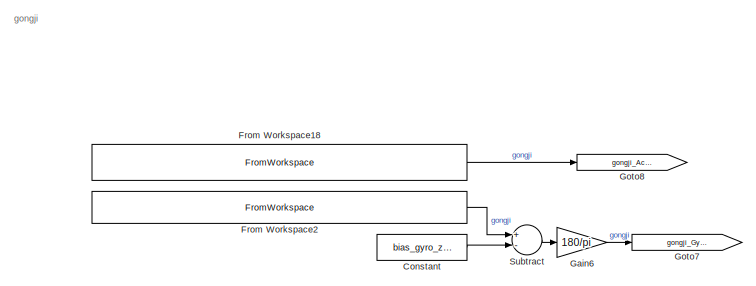
[diagram: root canvas - part 1/8, top left region]
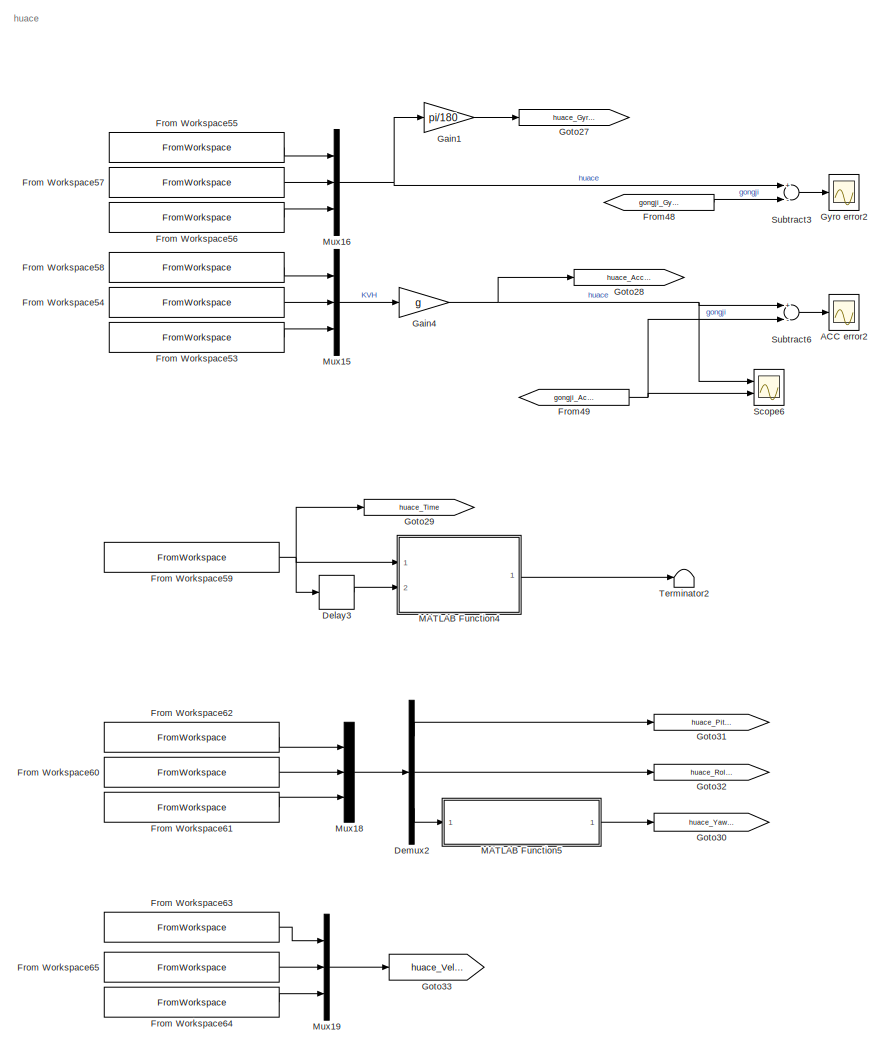
[diagram: root canvas - part 2/8, middle right region]
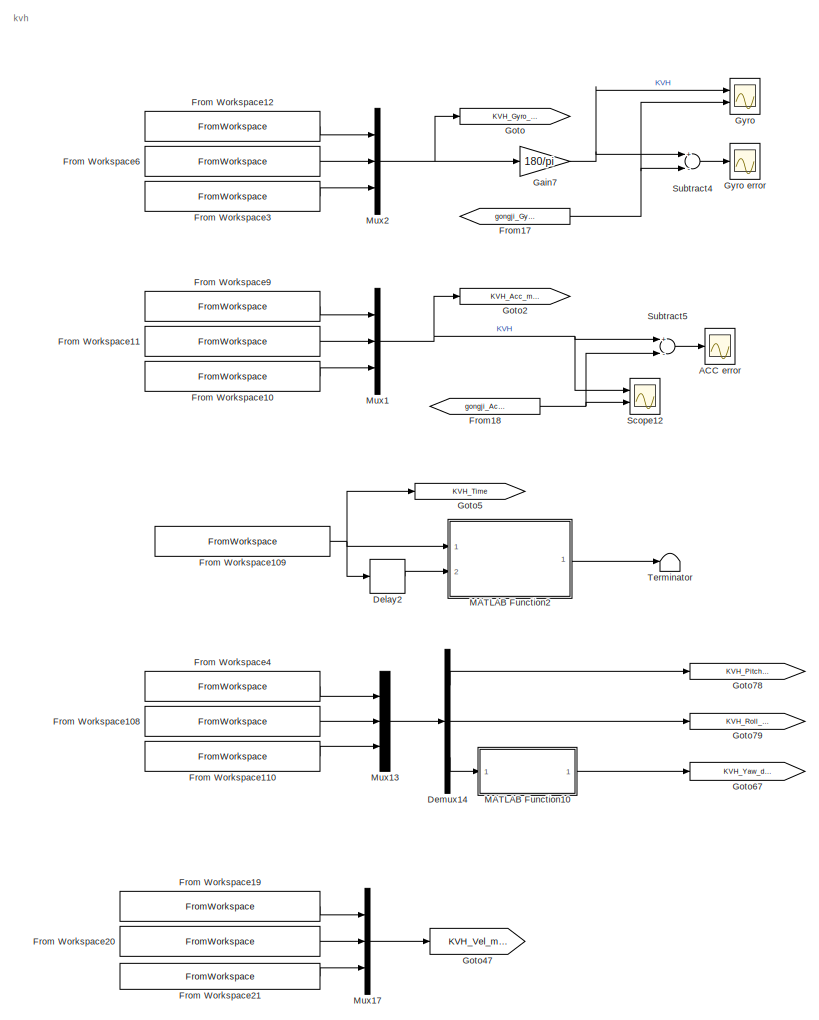
[diagram: root canvas - part 3/8, middle left region]
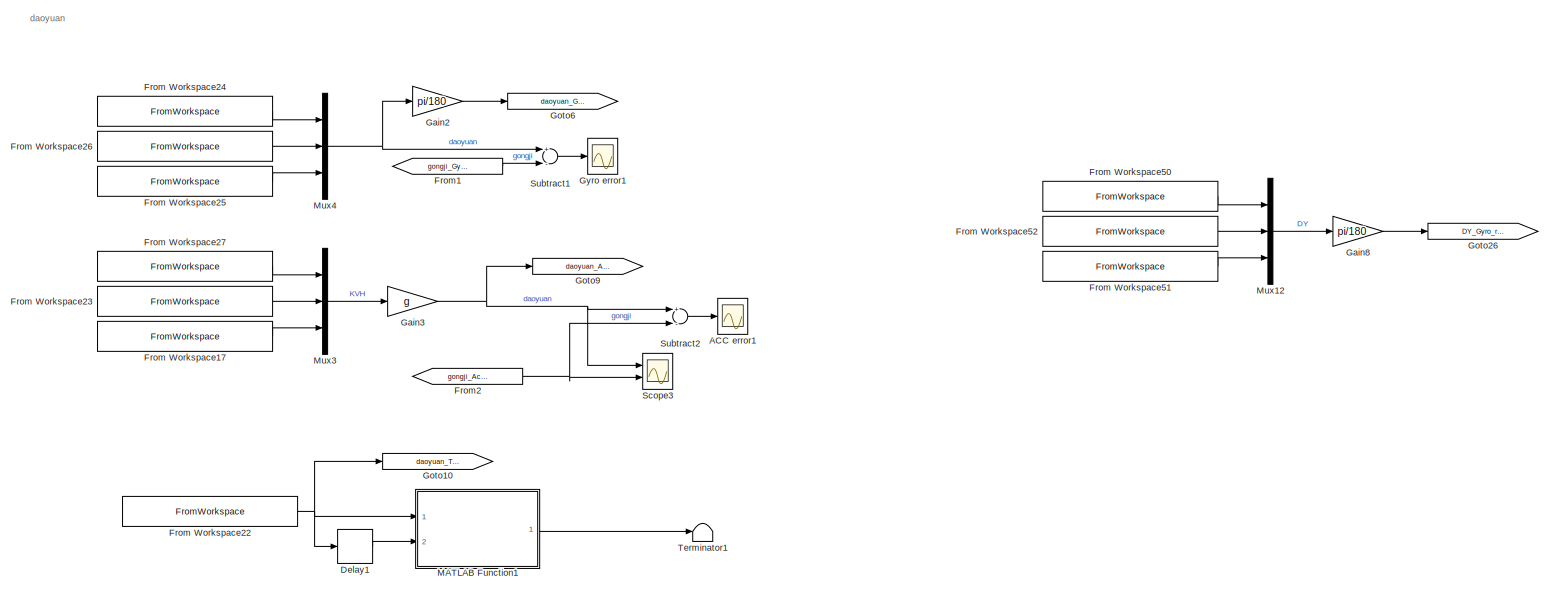
[diagram: root canvas - part 4/8, top center region]
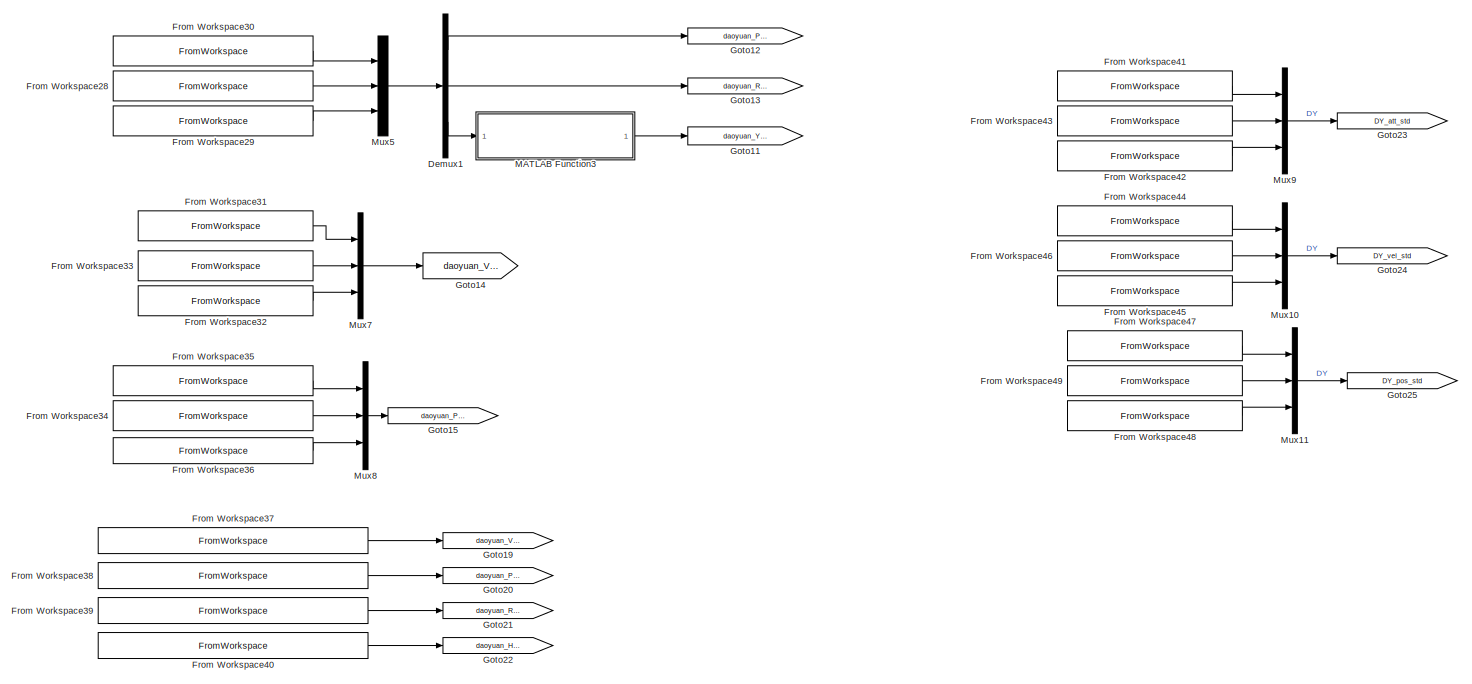
[diagram: root canvas - part 5/8, central region]
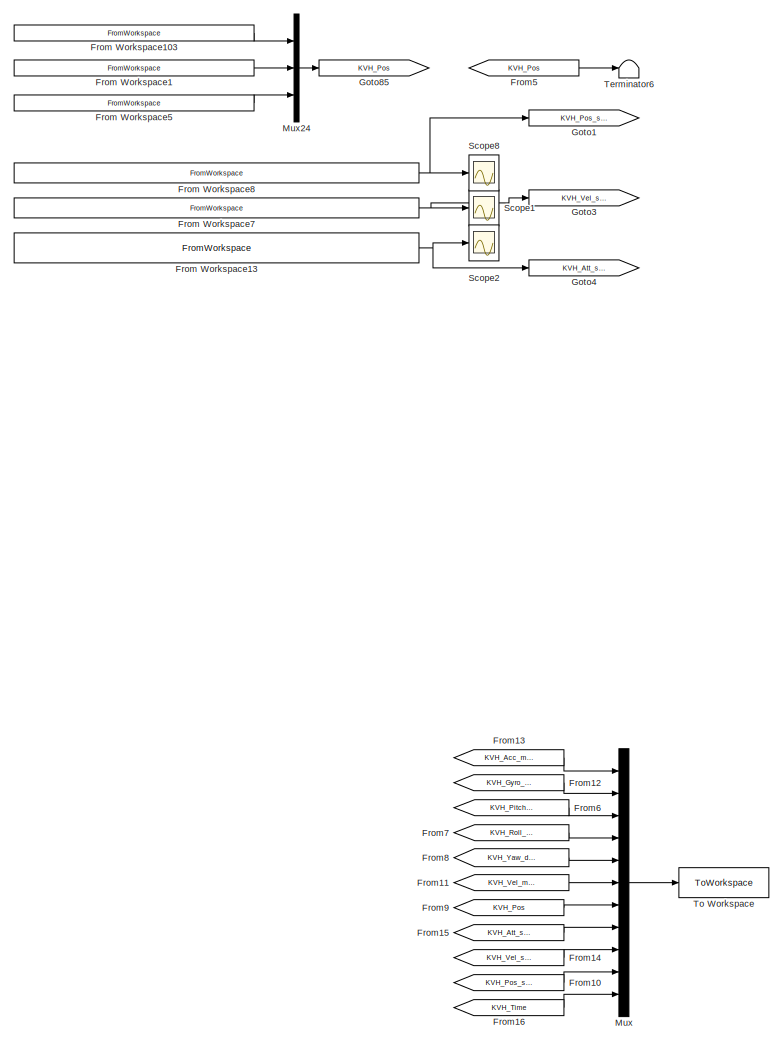
[diagram: root canvas - part 6/8, bottom left region]
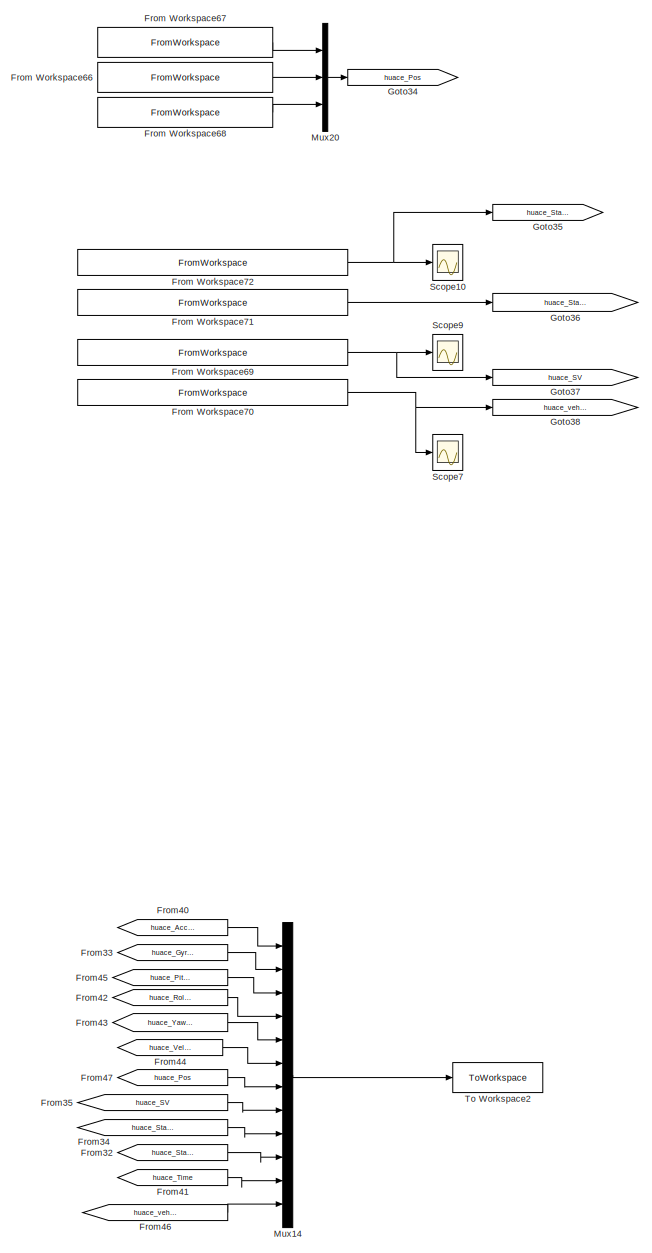
[diagram: root canvas - part 7/8, bottom right region]
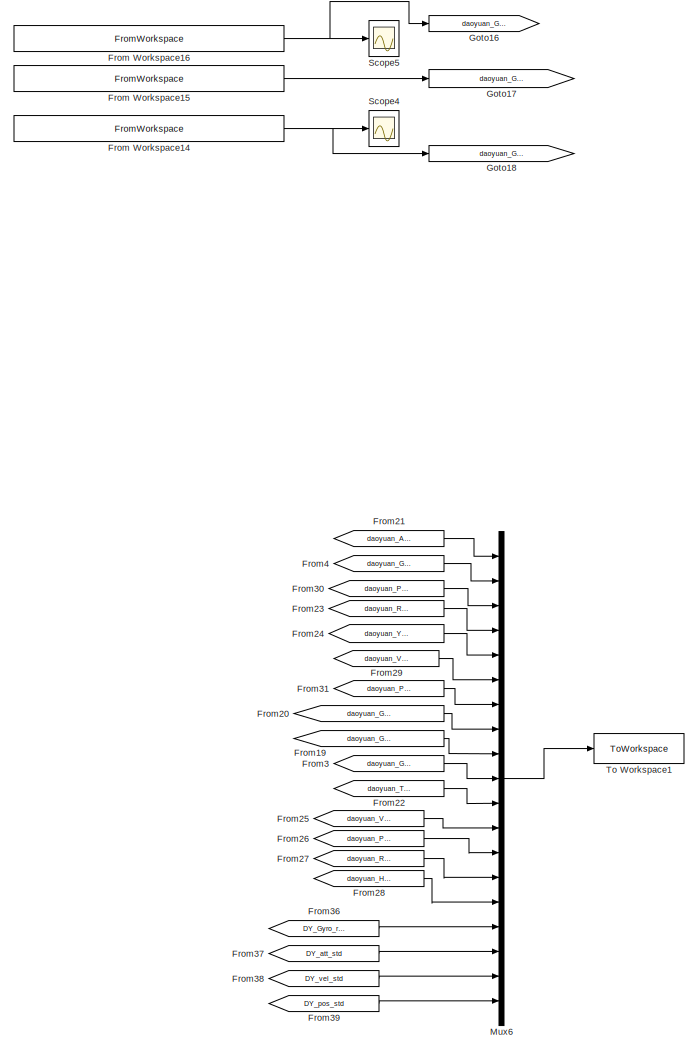
[diagram: root canvas - part 8/8, bottom center region]
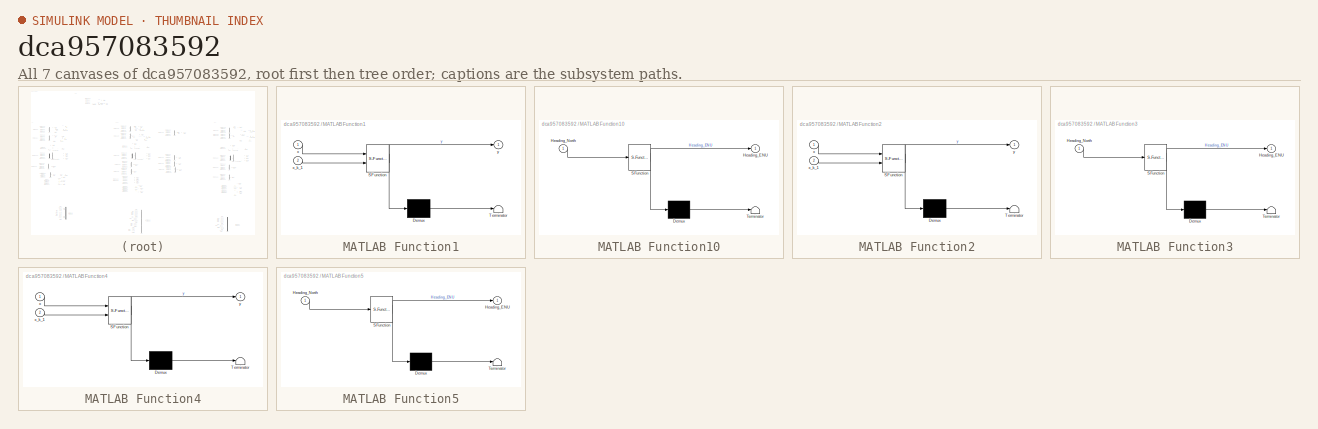
[diagram: thumbnail index - all 7 canvases of the model, root first then tree order]
MODEL slx_dca957083592
KIND model
CONFIG AbsTol = auto
CONFIG EnableMultiTasking = off
CONFIG FixedStep = 0.01
CONFIG MaxStep = 0.01
CONFIG MinStep = auto
CONFIG RelTol = 1e-3
CONFIG SampleTimeConstraint = Unconstrained
CONFIG Solver = ode3
CONFIG SolverName = ode3
CONFIG StartTime = 0.0
CONFIG StopTime = 6000
BLOCK [Scope] ACC error
  Floating = off
  NumInputPorts = 1
  Ports = [1]
  ScopeSpecificationString = Simulink.scopes.TimeScopeBlockCfg('CurrentConfiguration', extmgr.ConfigurationSet(extmgr.Configuration('Core','General UI',true),extmgr.Configuration('Core','Source UI',true),extmgr.Configuration('Sources','WiredSimulink',true,'DataLoggingVariableName','ScopeData2','DataLoggingSaveFormat','StructureWithTime','DataLoggingDecimation','1','DataLoggingDecimateData',true),extmgr.Configuration('Visuals'...<+1628ch>
BLOCK [Scope] ACC error1
  Floating = off
  NumInputPorts = 1
  Ports = [1]
  ScopeSpecificationString = Simulink.scopes.TimeScopeBlockCfg('CurrentConfiguration', extmgr.ConfigurationSet(extmgr.Configuration('Core','General UI',true),extmgr.Configuration('Core','Source UI',true),extmgr.Configuration('Sources','WiredSimulink',true,'DataLoggingVariableName','ScopeData1','DataLoggingSaveFormat','StructureWithTime','DataLoggingDecimation','1','DataLoggingDecimateData',true),extmgr.Configuration('Visuals'...<+1606ch>
BLOCK [Scope] ACC error2
  Floating = off
  NumInputPorts = 1
  Ports = [1]
  ScopeSpecificationString = Simulink.scopes.TimeScopeBlockCfg('CurrentConfiguration', extmgr.ConfigurationSet(extmgr.Configuration('Core','General UI',true),extmgr.Configuration('Core','Source UI',true),extmgr.Configuration('Sources','WiredSimulink',true,'DataLoggingVariableName','ScopeData6','DataLoggingSaveFormat','StructureWithTime','DataLoggingDecimation','1','DataLoggingDecimateData',true),extmgr.Configuration('Visuals'...<+1621ch>
BLOCK [Constant] Constant
  Value = bias_gyro_z_gongji
BLOCK [Delay] Delay1
  DelayLength = 1
  InitialCondition = 0
  InputPortMap = u0
  Ports = [1, 1]
BLOCK [Delay] Delay2
  DelayLength = 1
  InitialCondition = 0
  InputPortMap = u0
  Ports = [1, 1]
BLOCK [Delay] Delay3
  DelayLength = 1
  InitialCondition = 0
  InputPortMap = u0
  Ports = [1, 1]
BLOCK [Demux] Demux1
  DisplayOption = bar
  Outputs = 3
  Ports = [1, 3]
BLOCK [Demux] Demux14
  DisplayOption = bar
  Outputs = 3
  Ports = [1, 3]
BLOCK [Demux] Demux2
  DisplayOption = bar
  Outputs = 3
  Ports = [1, 3]
BLOCK [FromWorkspace] From Workspace1
  OutputAfterFinalValue = Holding final value
  VariableName = [T_post,KVH_Post.Longitude*deg2rad(1)]
  ZeroCross = on
BLOCK [FromWorkspace] From Workspace10
  Interpolate = off
  OutputAfterFinalValue = Holding final value
  VariableName = [T_RAWIMU,KVH1750.RAWIMU.Z_Acc]
  ZeroCross = on
BLOCK [FromWorkspace] From Workspace103
  OutputAfterFinalValue = Holding final value
  VariableName = [T_post,KVH_Post.Latitude*deg2rad(1)]
  ZeroCross = on
BLOCK [FromWorkspace] From Workspace108
  Interpolate = off
  OutputAfterFinalValue = Holding final value
  VariableName = [T_post,KVH_Post.Roll]
  ZeroCross = on
BLOCK [FromWorkspace] From Workspace109
  Interpolate = off
  OutputAfterFinalValue = Holding final value
  VariableName = [T_post,T_post]
  ZeroCross = on
BLOCK [FromWorkspace] From Workspace11
  Interpolate = off
  OutputAfterFinalValue = Holding final value
  VariableName = [T_RAWIMU,KVH1750.RAWIMU.Y_Acc]
  ZeroCross = on
BLOCK [FromWorkspace] From Workspace110
  Interpolate = off
  OutputAfterFinalValue = Holding final value
  VariableName = [T_post,KVH_Post.Heading]
  ZeroCross = on
BLOCK [FromWorkspace] From Workspace12
  Interpolate = off
  OutputAfterFinalValue = Holding final value
  VariableName = [T_RAWIMU,KVH1750.RAWIMU.X_Gyro]
  ZeroCross = on
BLOCK [FromWorkspace] From Workspace13
  Interpolate = off
  OutputAfterFinalValue = Holding final value
  VariableName = [T_post,KVH_Post.PitchSD,KVH_Post.RollSD,KVH_Post.HdngSD]
  ZeroCross = on
BLOCK [FromWorkspace] From Workspace14
  Interpolate = off
  OutputAfterFinalValue = Holding final value
  VariableName = [T_GNSS_daoyuan,data_daoyuan.GPSData.NumSV]
  ZeroCross = on
BLOCK [FromWorkspace] From Workspace15
  Interpolate = off
  OutputAfterFinalValue = Holding final value
  VariableName = [T_GNSS_daoyuan,data_daoyuan.GPSData.heading]
  ZeroCross = on
BLOCK [FromWorkspace] From Workspace16
  Interpolate = off
  OutputAfterFinalValue = Holding final value
  VariableName = [T_GNSS_daoyuan,data_daoyuan.GPSData.Lat]
  ZeroCross = on
BLOCK [FromWorkspace] From Workspace17
  Interpolate = off
  OutputAfterFinalValue = Holding final value
  VariableName = [T_INS_daoyuan,-data_daoyuan.INSData.a(:,3)]
  ZeroCross = on
BLOCK [FromWorkspace] From Workspace18
  Interpolate = off
  OutputAfterFinalValue = Holding final value
  VariableName = [Time,RawData_table.IMU_ACC_x,RawData_table.IMU_ACC_y,RawData_table.IMU_ACC_z]
  ZeroCross = on
BLOCK [FromWorkspace] From Workspace19
  Interpolate = off
  OutputAfterFinalValue = Holding final value
  VariableName = [T_post,KVH_Post.VEast]
  ZeroCross = on
BLOCK [FromWorkspace] From Workspace2
  Interpolate = off
  OutputAfterFinalValue = Holding final value
  VariableName = [Time,RawData_table.IMU_Gyro_x,RawData_table.IMU_Gyro_y,RawData_table.IMU_Gyro_z]
  ZeroCross = on
BLOCK [FromWorkspace] From Workspace20
  Interpolate = off
  OutputAfterFinalValue = Holding final value
  VariableName = [T_post,KVH_Post.VNorth]
  ZeroCross = on
BLOCK [FromWorkspace] From Workspace21
  Interpolate = off
  OutputAfterFinalValue = Holding final value
  VariableName = [T_post,KVH_Post.VUp]
  ZeroCross = on
BLOCK [FromWorkspace] From Workspace22
  Interpolate = off
  OutputAfterFinalValue = Holding final value
  VariableName = [T_INS_daoyuan,T_INS_daoyuan]
  ZeroCross = on
BLOCK [FromWorkspace] From Workspace23
  Interpolate = off
  OutputAfterFinalValue = Holding final value
  VariableName = [T_INS_daoyuan,data_daoyuan.INSData.a(:,1)]
  ZeroCross = on
BLOCK [FromWorkspace] From Workspace24
  Interpolate = off
  OutputAfterFinalValue = Holding final value
  VariableName = [T_INS_daoyuan,data_daoyuan.INSData.g(:,2)]
  ZeroCross = on
BLOCK [FromWorkspace] From Workspace25
  Interpolate = off
  OutputAfterFinalValue = Holding final value
  VariableName = [T_INS_daoyuan,-data_daoyuan.INSData.g(:,3)]
  ZeroCross = on
BLOCK [FromWorkspace] From Workspace26
  Interpolate = off
  OutputAfterFinalValue = Holding final value
  VariableName = [T_INS_daoyuan,data_daoyuan.INSData.g(:,1)]
  ZeroCross = on
BLOCK [FromWorkspace] From Workspace27
  Interpolate = off
  OutputAfterFinalValue = Holding final value
  VariableName = [T_INS_daoyuan,data_daoyuan.INSData.a(:,2)]
  ZeroCross = on
BLOCK [FromWorkspace] From Workspace28
  Interpolate = off
  OutputAfterFinalValue = Holding final value
  VariableName = [T_INS_daoyuan,data_daoyuan.INSData.angle(:,1)]
  ZeroCross = on
BLOCK [FromWorkspace] From Workspace29
  Interpolate = off
  OutputAfterFinalValue = Holding final value
  VariableName = [T_INS_daoyuan,data_daoyuan.INSData.angle(:,3)]
  ZeroCross = on
BLOCK [FromWorkspace] From Workspace3
  Interpolate = off
  OutputAfterFinalValue = Holding final value
  VariableName = [T_RAWIMU,KVH1750.RAWIMU.Z_Gyro]
  ZeroCross = on
BLOCK [FromWorkspace] From Workspace30
  Interpolate = off
  OutputAfterFinalValue = Holding final value
  VariableName = [T_INS_daoyuan,data_daoyuan.INSData.angle(:,2)]
  ZeroCross = on
BLOCK [FromWorkspace] From Workspace31
  Interpolate = off
  OutputAfterFinalValue = Holding final value
  VariableName = [T_INS_daoyuan,data_daoyuan.INSData.v(:,2)]
  ZeroCross = on
BLOCK [FromWorkspace] From Workspace32
  Interpolate = off
  OutputAfterFinalValue = Holding final value
  VariableName = [T_INS_daoyuan,-data_daoyuan.INSData.v(:,3)]
  ZeroCross = on
BLOCK [FromWorkspace] From Workspace33
  Interpolate = off
  OutputAfterFinalValue = Holding final value
  VariableName = [T_INS_daoyuan,data_daoyuan.INSData.v(:,1)]
  ZeroCross = on
BLOCK [FromWorkspace] From Workspace34
  Interpolate = off
  OutputAfterFinalValue = Holding final value
  VariableName = [T_INS_daoyuan,data_daoyuan.INSData.pos(:,2)]
  ZeroCross = on
BLOCK [FromWorkspace] From Workspace35
  Interpolate = off
  OutputAfterFinalValue = Holding final value
  VariableName = [T_INS_daoyuan,data_daoyuan.INSData.pos(:,1)]
  ZeroCross = on
BLOCK [FromWorkspace] From Workspace36
  Interpolate = off
  OutputAfterFinalValue = Holding final value
  VariableName = [T_INS_daoyuan,data_daoyuan.INSData.pos(:,3)]
  ZeroCross = on
BLOCK [FromWorkspace] From Workspace37
  Interpolate = off
  OutputAfterFinalValue = Holding final value
  VariableName = [T_INS_daoyuan,data_daoyuan.SelfDefine.V_R]
  ZeroCross = on
BLOCK [FromWorkspace] From Workspace38
  Interpolate = off
  OutputAfterFinalValue = Holding final value
  VariableName = [T_INS_daoyuan,data_daoyuan.SelfDefine.P_R]
  ZeroCross = on
BLOCK [FromWorkspace] From Workspace39
  Interpolate = off
  OutputAfterFinalValue = Holding final value
  VariableName = [T_INS_daoyuan,data_daoyuan.SelfDefine.R2_R]
  ZeroCross = on
BLOCK [FromWorkspace] From Workspace4
  Interpolate = off
  OutputAfterFinalValue = Holding final value
  VariableName = [T_post,KVH_Post.Pitch]
  ZeroCross = on
BLOCK [FromWorkspace] From Workspace40
  Interpolate = off
  OutputAfterFinalValue = Holding final value
  VariableName = [T_INS_daoyuan,data_daoyuan.SelfDefine.H2_R]
  ZeroCross = on
BLOCK [FromWorkspace] From Workspace41
  Interpolate = off
  OutputAfterFinalValue = Holding final value
  VariableName = [T_INS_DY,RawData_table_DY.pitch_std]
  ZeroCross = on
BLOCK [FromWorkspace] From Workspace42
  Interpolate = off
  OutputAfterFinalValue = Holding final value
  VariableName = [T_INS_DY,RawData_table_DY.yaw_std]
  ZeroCross = on
BLOCK [FromWorkspace] From Workspace43
  Interpolate = off
  OutputAfterFinalValue = Holding final value
  VariableName = [T_INS_DY,RawData_table_DY.roll_std]
  ZeroCross = on
BLOCK [FromWorkspace] From Workspace44
  Interpolate = off
  OutputAfterFinalValue = Holding final value
  VariableName = [T_INS_DY,RawData_table_DY.ve_std]
  ZeroCross = on
BLOCK [FromWorkspace] From Workspace45
  Interpolate = off
  OutputAfterFinalValue = Holding final value
  VariableName = [T_INS_DY,RawData_table_DY.vd_std]
  ZeroCross = on
BLOCK [FromWorkspace] From Workspace46
  Interpolate = off
  OutputAfterFinalValue = Holding final value
  VariableName = [T_INS_DY,RawData_table_DY.vn_std]
  ZeroCross = on
BLOCK [FromWorkspace] From Workspace47
  Interpolate = off
  OutputAfterFinalValue = Holding final value
  VariableName = [T_INS_DY,RawData_table_DY.lat_std]
  ZeroCross = on
BLOCK [FromWorkspace] From Workspace48
  Interpolate = off
  OutputAfterFinalValue = Holding final value
  VariableName = [T_INS_DY,RawData_table_DY.h_std]
  ZeroCross = on
BLOCK [FromWorkspace] From Workspace49
  Interpolate = off
  OutputAfterFinalValue = Holding final value
  VariableName = [T_INS_DY,RawData_table_DY.long_std]
  ZeroCross = on
BLOCK [FromWorkspace] From Workspace5
  OutputAfterFinalValue = Holding final value
  VariableName = [T_post,KVH_Post.HEll]
  ZeroCross = on
BLOCK [FromWorkspace] From Workspace50
  Interpolate = off
  OutputAfterFinalValue = Holding final value
  VariableName = [T_INS_DY,RawData_table_DY.Gyro_y]
  ZeroCross = on
BLOCK [FromWorkspace] From Workspace51
  Interpolate = off
  OutputAfterFinalValue = Holding final value
  VariableName = [T_INS_DY,-RawData_table_DY.Gyro_z]
  ZeroCross = on
BLOCK [FromWorkspace] From Workspace52
  Interpolate = off
  OutputAfterFinalValue = Holding final value
  VariableName = [T_INS_DY,RawData_table_DY.Gyro_x]
  ZeroCross = on
BLOCK [FromWorkspace] From Workspace53
  Interpolate = off
  OutputAfterFinalValue = Holding final value
  VariableName = [T_GPCHC,data_huace.acc_z]
  ZeroCross = on
BLOCK [FromWorkspace] From Workspace54
  Interpolate = off
  OutputAfterFinalValue = Holding final value
  VariableName = [T_GPCHC,data_huace.acc_y]
  ZeroCross = on
BLOCK [FromWorkspace] From Workspace55
  Interpolate = off
  OutputAfterFinalValue = Holding final value
  VariableName = [T_GPCHC,data_huace.gyro_x]
  ZeroCross = on
BLOCK [FromWorkspace] From Workspace56
  Interpolate = off
  OutputAfterFinalValue = Holding final value
  VariableName = [T_GPCHC,data_huace.gyro_z]
  ZeroCross = on
BLOCK [FromWorkspace] From Workspace57
  Interpolate = off
  OutputAfterFinalValue = Holding final value
  VariableName = [T_GPCHC,data_huace.gyro_y]
  ZeroCross = on
BLOCK [FromWorkspace] From Workspace58
  Interpolate = off
  OutputAfterFinalValue = Holding final value
  VariableName = [T_GPCHC,data_huace.acc_x]
  ZeroCross = on
BLOCK [FromWorkspace] From Workspace59
  Interpolate = off
  OutputAfterFinalValue = Holding final value
  VariableName = [T_GPCHC,T_GPCHC]
  ZeroCross = on
BLOCK [FromWorkspace] From Workspace6
  Interpolate = off
  OutputAfterFinalValue = Holding final value
  VariableName = [T_RAWIMU,KVH1750.RAWIMU.Y_Gyro]
  ZeroCross = on
BLOCK [FromWorkspace] From Workspace60
  Interpolate = off
  OutputAfterFinalValue = Holding final value
  VariableName = [T_GPCHC,data_huace.Roll]
  ZeroCross = on
BLOCK [FromWorkspace] From Workspace61
  Interpolate = off
  OutputAfterFinalValue = Holding final value
  VariableName = [T_GPCHC,data_huace.Heading]
  ZeroCross = on
BLOCK [FromWorkspace] From Workspace62
  Interpolate = off
  OutputAfterFinalValue = Holding final value
  VariableName = [T_GPCHC,data_huace.Pitch]
  ZeroCross = on
BLOCK [FromWorkspace] From Workspace63
  Interpolate = off
  OutputAfterFinalValue = Holding final value
  VariableName = [T_GPCHC,data_huace.VE]
  ZeroCross = on
BLOCK [FromWorkspace] From Workspace64
  Interpolate = off
  OutputAfterFinalValue = Holding final value
  VariableName = [T_GPCHC,data_huace.VU]
  ZeroCross = on
BLOCK [FromWorkspace] From Workspace65
  Interpolate = off
  OutputAfterFinalValue = Holding final value
  VariableName = [T_GPCHC,data_huace.VN]
  ZeroCross = on
BLOCK [FromWorkspace] From Workspace66
  Interpolate = off
  OutputAfterFinalValue = Holding final value
  VariableName = [T_GPCHC,data_huace.Longitude]
  ZeroCross = on
BLOCK [FromWorkspace] From Workspace67
  Interpolate = off
  OutputAfterFinalValue = Holding final value
  VariableName = [T_GPCHC,data_huace.Lattitude]
  ZeroCross = on
BLOCK [FromWorkspace] From Workspace68
  Interpolate = off
  OutputAfterFinalValue = Holding final value
  VariableName = [T_GPCHC,data_huace.Altitude]
  ZeroCross = on
BLOCK [FromWorkspace] From Workspace69
  Interpolate = off
  OutputAfterFinalValue = Holding final value
  VariableName = [T_GPCHC,data_huace.SV]
  ZeroCross = on
BLOCK [FromWorkspace] From Workspace7
  Interpolate = off
  OutputAfterFinalValue = Holding final value
  VariableName = [T_post,KVH_Post.SD_VE,KVH_Post.SD_VN,KVH_Post.SD_VH]
  ZeroCross = on
BLOCK [FromWorkspace] From Workspace70
  Interpolate = off
  OutputAfterFinalValue = Holding final value
  VariableName = [T_GPCHC,data_huace.vehicle_speed]
  ZeroCross = on
BLOCK [FromWorkspace] From Workspace71
  Interpolate = off
  OutputAfterFinalValue = Holding final value
  VariableName = [T_GPCHC,data_huace.Status_GNSS]
  ZeroCross = on
BLOCK [FromWorkspace] From Workspace72
  Interpolate = off
  OutputAfterFinalValue = Holding final value
  VariableName = [T_GPCHC,data_huace.Status_sys]
  ZeroCross = on
BLOCK [FromWorkspace] From Workspace8
  Interpolate = off
  OutputAfterFinalValue = Holding final value
  VariableName = [T_post,KVH_Post.SDEast,KVH_Post.SDNorth,KVH_Post.SDHeight]
  ZeroCross = on
BLOCK [FromWorkspace] From Workspace9
  Interpolate = off
  OutputAfterFinalValue = Holding final value
  VariableName = [T_RAWIMU,KVH1750.RAWIMU.X_Acc]
  ZeroCross = on
BLOCK [From] From1
  GotoTag = gongji_Gyro_degps
BLOCK [From] From10
  GotoTag = KVH_Pos_sigma
BLOCK [From] From11
  GotoTag = KVH_Vel_mps
BLOCK [From] From12
  GotoTag = KVH_Gyro_rdps
BLOCK [From] From13
  GotoTag = KVH_Acc_mpss
BLOCK [From] From14
  GotoTag = KVH_Vel_sigma
BLOCK [From] From15
  GotoTag = KVH_Att_sigma
BLOCK [From] From16
  GotoTag = KVH_Time
BLOCK [From] From17
  GotoTag = gongji_Gyro_degps
BLOCK [From] From18
  GotoTag = gongji_Acc_mpss
BLOCK [From] From19
  GotoTag = daoyuan_GNSS_heading
BLOCK [From] From2
  GotoTag = gongji_Acc_mpss
BLOCK [From] From20
  GotoTag = daoyuan_GNSS_NumSV
BLOCK [From] From21
  GotoTag = daoyuan_Acc_mpss
BLOCK [From] From22
  GotoTag = daoyuan_Time
BLOCK [From] From23
  GotoTag = daoyuan_Roll_deg
BLOCK [From] From24
  GotoTag = daoyuan_Yaw_deg
BLOCK [From] From25
  GotoTag = daoyuan_V_R
BLOCK [From] From26
  GotoTag = daoyuan_P_R
BLOCK [From] From27
  GotoTag = daoyuan_R2_R
BLOCK [From] From28
  GotoTag = daoyuan_H2_R
BLOCK [From] From29
  GotoTag = daoyuan_Vel_mps
BLOCK [From] From3
  GotoTag = daoyuan_GNSS_lat
BLOCK [From] From30
  GotoTag = daoyuan_Pitch_deg
BLOCK [From] From31
  GotoTag = daoyuan_Pos
BLOCK [From] From32
  GotoTag = huace_Status_sys
BLOCK [From] From33
  GotoTag = huace_Gyro_rdps
BLOCK [From] From34
  GotoTag = huace_Status_GNSS
BLOCK [From] From35
  GotoTag = huace_SV
BLOCK [From] From36
  GotoTag = DY_Gyro_rdps
BLOCK [From] From37
  GotoTag = DY_att_std
BLOCK [From] From38
  GotoTag = DY_vel_std
BLOCK [From] From39
  GotoTag = DY_pos_std
BLOCK [From] From4
  GotoTag = daoyuan_Gyro_rdps
BLOCK [From] From40
  GotoTag = huace_Acc_mpss
BLOCK [From] From41
  GotoTag = huace_Time
BLOCK [From] From42
  GotoTag = huace_Roll_deg
BLOCK [From] From43
  GotoTag = huace_Yaw_deg
BLOCK [From] From44
  GotoTag = huace_Vel_mps
BLOCK [From] From45
  GotoTag = huace_Pitch_deg
BLOCK [From] From46
  GotoTag = huace_vehicle_speed
BLOCK [From] From47
  GotoTag = huace_Pos
BLOCK [From] From48
  GotoTag = gongji_Gyro_degps
BLOCK [From] From49
  GotoTag = gongji_Acc_mpss
BLOCK [From] From5
  GotoTag = KVH_Pos
BLOCK [From] From6
  GotoTag = KVH_Pitch_deg
BLOCK [From] From7
  GotoTag = KVH_Roll_deg
BLOCK [From] From8
  GotoTag = KVH_Yaw_deg
BLOCK [From] From9
  GotoTag = KVH_Pos
BLOCK [Gain] Gain1
  Gain = pi/180
  OutDataTypeStr = Inherit: Inherit via internal rule
  ParamDataTypeStr = Inherit: Inherit via internal rule
  SaturateOnIntegerOverflow = off
BLOCK [Gain] Gain2
  Gain = pi/180
  OutDataTypeStr = Inherit: Inherit via internal rule
  ParamDataTypeStr = Inherit: Inherit via internal rule
  SaturateOnIntegerOverflow = off
BLOCK [Gain] Gain3
  Gain = g
  OutDataTypeStr = Inherit: Inherit via internal rule
  ParamDataTypeStr = Inherit: Inherit via internal rule
  SaturateOnIntegerOverflow = off
BLOCK [Gain] Gain4
  Gain = g
  OutDataTypeStr = Inherit: Inherit via internal rule
  ParamDataTypeStr = Inherit: Inherit via internal rule
  SaturateOnIntegerOverflow = off
BLOCK [Gain] Gain6
  Gain = 180/pi
  OutDataTypeStr = Inherit: Inherit via internal rule
  ParamDataTypeStr = Inherit: Inherit via internal rule
  SaturateOnIntegerOverflow = off
BLOCK [Gain] Gain7
  Gain = 180/pi
  OutDataTypeStr = Inherit: Inherit via internal rule
  ParamDataTypeStr = Inherit: Inherit via internal rule
  SaturateOnIntegerOverflow = off
BLOCK [Gain] Gain8
  Gain = pi/180
  OutDataTypeStr = Inherit: Inherit via internal rule
  ParamDataTypeStr = Inherit: Inherit via internal rule
  SaturateOnIntegerOverflow = off
BLOCK [Goto] Goto
  GotoTag = KVH_Gyro_rdps
BLOCK [Goto] Goto1
  GotoTag = KVH_Pos_sigma
BLOCK [Goto] Goto10
  GotoTag = daoyuan_Time
BLOCK [Goto] Goto11
  GotoTag = daoyuan_Yaw_deg
BLOCK [Goto] Goto12
  GotoTag = daoyuan_Pitch_deg
BLOCK [Goto] Goto13
  GotoTag = daoyuan_Roll_deg
BLOCK [Goto] Goto14
  GotoTag = daoyuan_Vel_mps
BLOCK [Goto] Goto15
  GotoTag = daoyuan_Pos
BLOCK [Goto] Goto16
  GotoTag = daoyuan_GNSS_lat
BLOCK [Goto] Goto17
  GotoTag = daoyuan_GNSS_heading
BLOCK [Goto] Goto18
  GotoTag = daoyuan_GNSS_NumSV
BLOCK [Goto] Goto19
  GotoTag = daoyuan_V_R
BLOCK [Goto] Goto2
  GotoTag = KVH_Acc_mpss
BLOCK [Goto] Goto20
  GotoTag = daoyuan_P_R
BLOCK [Goto] Goto21
  GotoTag = daoyuan_R2_R
BLOCK [Goto] Goto22
  GotoTag = daoyuan_H2_R
BLOCK [Goto] Goto23
  GotoTag = DY_att_std
BLOCK [Goto] Goto24
  GotoTag = DY_vel_std
BLOCK [Goto] Goto25
  GotoTag = DY_pos_std
BLOCK [Goto] Goto26
  GotoTag = DY_Gyro_rdps
BLOCK [Goto] Goto27
  GotoTag = huace_Gyro_rdps
BLOCK [Goto] Goto28
  GotoTag = huace_Acc_mpss
BLOCK [Goto] Goto29
  GotoTag = huace_Time
BLOCK [Goto] Goto3
  GotoTag = KVH_Vel_sigma
BLOCK [Goto] Goto30
  GotoTag = huace_Yaw_deg
BLOCK [Goto] Goto31
  GotoTag = huace_Pitch_deg
BLOCK [Goto] Goto32
  GotoTag = huace_Roll_deg
BLOCK [Goto] Goto33
  GotoTag = huace_Vel_mps
BLOCK [Goto] Goto34
  GotoTag = huace_Pos
BLOCK [Goto] Goto35
  GotoTag = huace_Status_sys
BLOCK [Goto] Goto36
  GotoTag = huace_Status_GNSS
BLOCK [Goto] Goto37
  GotoTag = huace_SV
BLOCK [Goto] Goto38
  GotoTag = huace_vehicle_speed
BLOCK [Goto] Goto4
  GotoTag = KVH_Att_sigma
BLOCK [Goto] Goto47
  GotoTag = KVH_Vel_mps
BLOCK [Goto] Goto5
  GotoTag = KVH_Time
BLOCK [Goto] Goto6
  GotoTag = daoyuan_Gyro_rdps
BLOCK [Goto] Goto67
  GotoTag = KVH_Yaw_deg
BLOCK [Goto] Goto7
  GotoTag = gongji_Gyro_degps
BLOCK [Goto] Goto78
  GotoTag = KVH_Pitch_deg
BLOCK [Goto] Goto79
  GotoTag = KVH_Roll_deg
BLOCK [Goto] Goto8
  GotoTag = gongji_Acc_mpss
BLOCK [Goto] Goto85
  GotoTag = KVH_Pos
BLOCK [Goto] Goto9
  GotoTag = daoyuan_Acc_mpss
BLOCK [Scope] Gyro 
  Floating = off
  NumInputPorts = 2
  Ports = [2]
  ScopeSpecificationString = Simulink.scopes.TimeScopeBlockCfg('CurrentConfiguration', extmgr.ConfigurationSet(extmgr.Configuration('Core','General UI',true),extmgr.Configuration('Core','Source UI',true),extmgr.Configuration('Sources','WiredSimulink',true,'DataLoggingVariableName','ScopeData4','DataLoggingSaveFormat','StructureWithTime','DataLoggingDecimation','1','DataLoggingDecimateData',true),extmgr.Configuration('Visuals'...<+1718ch>
BLOCK [Scope] Gyro error
  Floating = off
  NumInputPorts = 1
  Ports = [1]
  ScopeSpecificationString = Simulink.scopes.TimeScopeBlockCfg('CurrentConfiguration', extmgr.ConfigurationSet(extmgr.Configuration('Core','General UI',true),extmgr.Configuration('Core','Source UI',true),extmgr.Configuration('Sources','WiredSimulink',true,'DataLoggingVariableName','ScopeData1','DataLoggingSaveFormat','StructureWithTime','DataLoggingDecimation','1','DataLoggingDecimateData',true),extmgr.Configuration('Visuals'...<+1672ch>
BLOCK [Scope] Gyro error1
  Floating = off
  NumInputPorts = 1
  Ports = [1]
  ScopeSpecificationString = Simulink.scopes.TimeScopeBlockCfg('CurrentConfiguration', extmgr.ConfigurationSet(extmgr.Configuration('Core','General UI',true),extmgr.Configuration('Core','Source UI',true),extmgr.Configuration('Sources','WiredSimulink',true,'DataLoggingVariableName','ScopeData2','DataLoggingSaveFormat','StructureWithTime','DataLoggingDecimation','1','DataLoggingDecimateData',true),extmgr.Configuration('Visuals'...<+1704ch>
BLOCK [Scope] Gyro error2
  Floating = off
  NumInputPorts = 1
  Ports = [1]
  ScopeSpecificationString = Simulink.scopes.TimeScopeBlockCfg('CurrentConfiguration', extmgr.ConfigurationSet(extmgr.Configuration('Core','General UI',true),extmgr.Configuration('Core','Source UI',true),extmgr.Configuration('Sources','WiredSimulink',true,'DataLoggingVariableName','ScopeData7','DataLoggingSaveFormat','StructureWithTime','DataLoggingDecimation','1','DataLoggingDecimateData',true),extmgr.Configuration('Visuals'...<+1704ch>
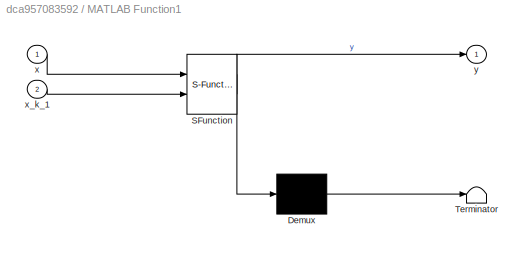
BLOCK [SubSystem] MATLAB Function1
  ErrorFcn = Stateflow.Translate.translate
  PermitHierarchicalResolution = ExplicitOnly
  Ports = [2, 1]
  RequestExecContextInheritance = off
  SFBlockType = MATLAB Function
  TreatAsAtomicUnit = on
BLOCK [Demux] MATLAB Function1/ Demux 
  Outputs = 1
  Ports = [1, 1]
BLOCK [S-Function] MATLAB Function1/ SFunction 
  EnableBusSupport = on
  FunctionName = sf_sfun
  PortCounts = [2 2]
  Ports = [2, 2]
  SFcnIsStateOwnerBlock = off
  SFunctionDeploymentMode = off
  Tag = Stateflow S-Function 1
BLOCK [Terminator] MATLAB Function1/ Terminator 
BLOCK [Inport] MATLAB Function1/x
  IconDisplay = Port number
BLOCK [Inport] MATLAB Function1/x_k_1
  IconDisplay = Port number
  Port = 2
BLOCK [Outport] MATLAB Function1/y
  IconDisplay = Port number
BLOCK [SubSystem] MATLAB Function10
  ErrorFcn = Stateflow.Translate.translate
  PermitHierarchicalResolution = ExplicitOnly
  Ports = [1, 1]
  RequestExecContextInheritance = off
  SFBlockType = MATLAB Function
  TreatAsAtomicUnit = on
BLOCK [Demux] MATLAB Function10/ Demux 
  Outputs = 1
  Ports = [1, 1]
BLOCK [S-Function] MATLAB Function10/ SFunction 
  EnableBusSupport = on
  FunctionName = sf_sfun
  PortCounts = [1 2]
  Ports = [1, 2]
  SFcnIsStateOwnerBlock = off
  SFunctionDeploymentMode = off
  Tag = Stateflow S-Function 124
BLOCK [Terminator] MATLAB Function10/ Terminator 
BLOCK [Outport] MATLAB Function10/Heading_ENU
  IconDisplay = Port number
BLOCK [Inport] MATLAB Function10/Heading_North
  IconDisplay = Port number
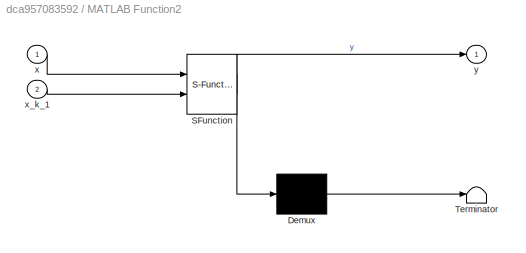
BLOCK [SubSystem] MATLAB Function2
  ErrorFcn = Stateflow.Translate.translate
  PermitHierarchicalResolution = ExplicitOnly
  Ports = [2, 1]
  RequestExecContextInheritance = off
  SFBlockType = MATLAB Function
  TreatAsAtomicUnit = on
BLOCK [Demux] MATLAB Function2/ Demux 
  Outputs = 1
  Ports = [1, 1]
BLOCK [S-Function] MATLAB Function2/ SFunction 
  EnableBusSupport = on
  FunctionName = sf_sfun
  PortCounts = [2 2]
  Ports = [2, 2]
  SFcnIsStateOwnerBlock = off
  SFunctionDeploymentMode = off
  Tag = Stateflow S-Function 57
BLOCK [Terminator] MATLAB Function2/ Terminator 
BLOCK [Inport] MATLAB Function2/x
  IconDisplay = Port number
BLOCK [Inport] MATLAB Function2/x_k_1
  IconDisplay = Port number
  Port = 2
BLOCK [Outport] MATLAB Function2/y
  IconDisplay = Port number
BLOCK [SubSystem] MATLAB Function3
  ErrorFcn = Stateflow.Translate.translate
  PermitHierarchicalResolution = ExplicitOnly
  Ports = [1, 1]
  RequestExecContextInheritance = off
  SFBlockType = MATLAB Function
  TreatAsAtomicUnit = on
BLOCK [Demux] MATLAB Function3/ Demux 
  Outputs = 1
  Ports = [1, 1]
BLOCK [S-Function] MATLAB Function3/ SFunction 
  EnableBusSupport = on
  FunctionName = sf_sfun
  PortCounts = [1 2]
  Ports = [1, 2]
  SFcnIsStateOwnerBlock = off
  SFunctionDeploymentMode = off
  Tag = Stateflow S-Function 2
BLOCK [Terminator] MATLAB Function3/ Terminator 
BLOCK [Outport] MATLAB Function3/Heading_ENU
  IconDisplay = Port number
BLOCK [Inport] MATLAB Function3/Heading_North
  IconDisplay = Port number
BLOCK [SubSystem] MATLAB Function4
  ErrorFcn = Stateflow.Translate.translate
  PermitHierarchicalResolution = ExplicitOnly
  Ports = [2, 1]
  RequestExecContextInheritance = off
  SFBlockType = MATLAB Function
  TreatAsAtomicUnit = on
BLOCK [Demux] MATLAB Function4/ Demux 
  Outputs = 1
  Ports = [1, 1]
BLOCK [S-Function] MATLAB Function4/ SFunction 
  EnableBusSupport = on
  FunctionName = sf_sfun
  PortCounts = [2 2]
  Ports = [2, 2]
  SFcnIsStateOwnerBlock = off
  SFunctionDeploymentMode = off
  Tag = Stateflow S-Function 3
BLOCK [Terminator] MATLAB Function4/ Terminator 
BLOCK [Inport] MATLAB Function4/x
  IconDisplay = Port number
BLOCK [Inport] MATLAB Function4/x_k_1
  IconDisplay = Port number
  Port = 2
BLOCK [Outport] MATLAB Function4/y
  IconDisplay = Port number
BLOCK [SubSystem] MATLAB Function5
  ErrorFcn = Stateflow.Translate.translate
  PermitHierarchicalResolution = ExplicitOnly
  Ports = [1, 1]
  RequestExecContextInheritance = off
  SFBlockType = MATLAB Function
  TreatAsAtomicUnit = on
BLOCK [Demux] MATLAB Function5/ Demux 
  Outputs = 1
  Ports = [1, 1]
BLOCK [S-Function] MATLAB Function5/ SFunction 
  EnableBusSupport = on
  FunctionName = sf_sfun
  PortCounts = [1 2]
  Ports = [1, 2]
  SFcnIsStateOwnerBlock = off
  SFunctionDeploymentMode = off
  Tag = Stateflow S-Function 4
BLOCK [Terminator] MATLAB Function5/ Terminator 
BLOCK [Outport] MATLAB Function5/Heading_ENU
  IconDisplay = Port number
BLOCK [Inport] MATLAB Function5/Heading_North
  IconDisplay = Port number
BLOCK [Mux] Mux
  DisplayOption = bar
  Inputs = 11
  Ports = [11, 1]
BLOCK [Mux] Mux1
  DisplayOption = bar
  Inputs = 3
  Ports = [3, 1]
BLOCK [Mux] Mux10
  DisplayOption = bar
  Inputs = 3
  Ports = [3, 1]
BLOCK [Mux] Mux11
  DisplayOption = bar
  Inputs = 3
  Ports = [3, 1]
BLOCK [Mux] Mux12
  DisplayOption = bar
  Inputs = 3
  Ports = [3, 1]
BLOCK [Mux] Mux13
  DisplayOption = bar
  Inputs = 3
  Ports = [3, 1]
BLOCK [Mux] Mux14
  DisplayOption = bar
  Inputs = 12
  Ports = [12, 1]
BLOCK [Mux] Mux15
  DisplayOption = bar
  Inputs = 3
  Ports = [3, 1]
BLOCK [Mux] Mux16
  DisplayOption = bar
  Inputs = 3
  Ports = [3, 1]
BLOCK [Mux] Mux17
  DisplayOption = bar
  Inputs = 3
  Ports = [3, 1]
BLOCK [Mux] Mux18
  DisplayOption = bar
  Inputs = 3
  Ports = [3, 1]
BLOCK [Mux] Mux19
  DisplayOption = bar
  Inputs = 3
  Ports = [3, 1]
BLOCK [Mux] Mux2
  DisplayOption = bar
  Inputs = 3
  Ports = [3, 1]
BLOCK [Mux] Mux20
  DisplayOption = bar
  Inputs = 3
  Ports = [3, 1]
BLOCK [Mux] Mux24
  DisplayOption = bar
  Inputs = 3
  Ports = [3, 1]
BLOCK [Mux] Mux3
  DisplayOption = bar
  Inputs = 3
  Ports = [3, 1]
BLOCK [Mux] Mux4
  DisplayOption = bar
  Inputs = 3
  Ports = [3, 1]
BLOCK [Mux] Mux5
  DisplayOption = bar
  Inputs = 3
  Ports = [3, 1]
BLOCK [Mux] Mux6
  DisplayOption = bar
  Inputs = 19
  Ports = [19, 1]
BLOCK [Mux] Mux7
  DisplayOption = bar
  Inputs = 3
  Ports = [3, 1]
BLOCK [Mux] Mux8
  DisplayOption = bar
  Inputs = 3
  Ports = [3, 1]
BLOCK [Mux] Mux9
  DisplayOption = bar
  Inputs = 3
  Ports = [3, 1]
BLOCK [Scope] Scope1
  Floating = off
  NumInputPorts = 1
  Ports = [1]
  ScopeSpecificationString = Simulink.scopes.TimeScopeBlockCfg('CurrentConfiguration', extmgr.ConfigurationSet(extmgr.Configuration('Core','General UI',true),extmgr.Configuration('Core','Source UI',true),extmgr.Configuration('Sources','WiredSimulink',true,'DataLoggingVariableName','ScopeData2','DataLoggingSaveFormat','StructureWithTime','DataLoggingDecimation','1','DataLoggingDecimateData',true),extmgr.Configuration('Visuals'...<+1813ch>
BLOCK [Scope] Scope10
  Floating = off
  NumInputPorts = 1
  Ports = [1]
  ScopeSpecificationString = Simulink.scopes.TimeScopeBlockCfg('CurrentConfiguration', extmgr.ConfigurationSet(extmgr.Configuration('Core','General UI',true),extmgr.Configuration('Core','Source UI',true),extmgr.Configuration('Sources','WiredSimulink',true,'DataLoggingVariableName','ScopeData9','DataLoggingSaveFormat','StructureWithTime','DataLoggingDecimation','1','DataLoggingDecimateData',true),extmgr.Configuration('Visuals'...<+1813ch>
BLOCK [Scope] Scope12
  Floating = off
  NumInputPorts = 2
  Ports = [2]
  ScopeSpecificationString = Simulink.scopes.TimeScopeBlockCfg('CurrentConfiguration', extmgr.ConfigurationSet(extmgr.Configuration('Core','General UI',true),extmgr.Configuration('Core','Source UI',true),extmgr.Configuration('Sources','WiredSimulink',true,'DataLoggingVariableName','ScopeData1','DataLoggingSaveFormat','StructureWithTime','DataLoggingDecimation','1','DataLoggingDecimateData',true),extmgr.Configuration('Visuals'...<+1753ch>
BLOCK [Scope] Scope2
  Floating = off
  NumInputPorts = 1
  Ports = [1]
  ScopeSpecificationString = Simulink.scopes.TimeScopeBlockCfg('CurrentConfiguration', extmgr.ConfigurationSet(extmgr.Configuration('Core','General UI',true),extmgr.Configuration('Core','Source UI',true),extmgr.Configuration('Sources','WiredSimulink',true,'DataLoggingVariableName','ScopeData3','DataLoggingSaveFormat','StructureWithTime','DataLoggingDecimation','1','DataLoggingDecimateData',true),extmgr.Configuration('Visuals'...<+1816ch>
BLOCK [Scope] Scope3
  Floating = off
  NumInputPorts = 2
  Ports = [2]
  ScopeSpecificationString = Simulink.scopes.TimeScopeBlockCfg('CurrentConfiguration', extmgr.ConfigurationSet(extmgr.Configuration('Core','General UI',true),extmgr.Configuration('Core','Source UI',true),extmgr.Configuration('Sources','WiredSimulink',true,'DataLoggingVariableName','ScopeData3','DataLoggingSaveFormat','StructureWithTime','DataLoggingDecimation','1','DataLoggingDecimateData',true),extmgr.Configuration('Visuals'...<+1819ch>
BLOCK [Scope] Scope4
  Floating = off
  NumInputPorts = 1
  Ports = [1]
  ScopeSpecificationString = Simulink.scopes.TimeScopeBlockCfg('CurrentConfiguration', extmgr.ConfigurationSet(extmgr.Configuration('Core','General UI',true),extmgr.Configuration('Core','Source UI',true),extmgr.Configuration('Sources','WiredSimulink',true,'DataLoggingVariableName','ScopeData4','DataLoggingSaveFormat','StructureWithTime','DataLoggingDecimation','1','DataLoggingDecimateData',true),extmgr.Configuration('Visuals'...<+1775ch>
BLOCK [Scope] Scope5
  Floating = off
  NumInputPorts = 1
  Ports = [1]
  ScopeSpecificationString = Simulink.scopes.TimeScopeBlockCfg('CurrentConfiguration', extmgr.ConfigurationSet(extmgr.Configuration('Core','General UI',true),extmgr.Configuration('Core','Source UI',true),extmgr.Configuration('Sources','WiredSimulink',true,'DataLoggingVariableName','ScopeData5','DataLoggingSaveFormat','StructureWithTime','DataLoggingDecimation','1','DataLoggingDecimateData',true),extmgr.Configuration('Visuals'...<+1829ch>
BLOCK [Scope] Scope6
  Floating = off
  NumInputPorts = 2
  Ports = [2]
  ScopeSpecificationString = Simulink.scopes.TimeScopeBlockCfg('CurrentConfiguration', extmgr.ConfigurationSet(extmgr.Configuration('Core','General UI',true),extmgr.Configuration('Core','Source UI',true),extmgr.Configuration('Sources','WiredSimulink',true,'DataLoggingVariableName','ScopeData8','DataLoggingSaveFormat','StructureWithTime','DataLoggingDecimation','1','DataLoggingDecimateData',true),extmgr.Configuration('Visuals'...<+1722ch>
BLOCK [Scope] Scope7
  Floating = off
  NumInputPorts = 1
  Ports = [1]
  ScopeSpecificationString = Simulink.scopes.TimeScopeBlockCfg('CurrentConfiguration', extmgr.ConfigurationSet(extmgr.Configuration('Core','General UI',true),extmgr.Configuration('Core','Source UI',true),extmgr.Configuration('Sources','WiredSimulink',true,'DataLoggingVariableName','ScopeData10','DataLoggingSaveFormat','StructureWithTime','DataLoggingDecimation','1','DataLoggingDecimateData',true),extmgr.Configuration('Visuals...<+1776ch>
BLOCK [Scope] Scope8
  Floating = off
  NumInputPorts = 1
  Ports = [1]
  ScopeSpecificationString = Simulink.scopes.TimeScopeBlockCfg('CurrentConfiguration', extmgr.ConfigurationSet(extmgr.Configuration('Core','General UI',true),extmgr.Configuration('Core','Source UI',true),extmgr.Configuration('Sources','WiredSimulink',true,'DataLoggingVariableName','ScopeData1','DataLoggingSaveFormat','StructureWithTime','DataLoggingDecimation','1','DataLoggingDecimateData',true),extmgr.Configuration('Visuals'...<+1813ch>
BLOCK [Scope] Scope9
  Floating = off
  NumInputPorts = 1
  Ports = [1]
  ScopeSpecificationString = Simulink.scopes.TimeScopeBlockCfg('CurrentConfiguration', extmgr.ConfigurationSet(extmgr.Configuration('Core','General UI',true),extmgr.Configuration('Core','Source UI',true),extmgr.Configuration('Sources','WiredSimulink',true,'DataLoggingVariableName','ScopeData11','DataLoggingSaveFormat','StructureWithTime','DataLoggingDecimation','1','DataLoggingDecimateData',true),extmgr.Configuration('Visuals...<+1776ch>
BLOCK [Sum] Subtract
  InputSameDT = off
  Inputs = +-
  OutDataTypeStr = Inherit: Inherit via internal rule
  Ports = [2, 1]
  SaturateOnIntegerOverflow = off
BLOCK [Sum] Subtract1
  InputSameDT = off
  Inputs = +-
  OutDataTypeStr = Inherit: Inherit via internal rule
  Ports = [2, 1]
  SaturateOnIntegerOverflow = off
BLOCK [Sum] Subtract2
  InputSameDT = off
  Inputs = +-
  OutDataTypeStr = Inherit: Inherit via internal rule
  Ports = [2, 1]
  SaturateOnIntegerOverflow = off
BLOCK [Sum] Subtract3
  InputSameDT = off
  Inputs = +-
  OutDataTypeStr = Inherit: Inherit via internal rule
  Ports = [2, 1]
  SaturateOnIntegerOverflow = off
BLOCK [Sum] Subtract4
  InputSameDT = off
  Inputs = +-
  OutDataTypeStr = Inherit: Inherit via internal rule
  Ports = [2, 1]
  SaturateOnIntegerOverflow = off
BLOCK [Sum] Subtract5
  InputSameDT = off
  Inputs = +-
  OutDataTypeStr = Inherit: Inherit via internal rule
  Ports = [2, 1]
  SaturateOnIntegerOverflow = off
BLOCK [Sum] Subtract6
  InputSameDT = off
  Inputs = +-
  OutDataTypeStr = Inherit: Inherit via internal rule
  Ports = [2, 1]
  SaturateOnIntegerOverflow = off
BLOCK [Terminator] Terminator
BLOCK [Terminator] Terminator1
BLOCK [Terminator] Terminator2
BLOCK [Terminator] Terminator6
BLOCK [ToWorkspace] To Workspace
  FixptAsFi = on
  MaxDataPoints = inf
  Ports = [1]
  SampleTime = -1
  SaveFormat = Structure With Time
  VariableName = KVH_gongji
BLOCK [ToWorkspace] To Workspace1
  FixptAsFi = on
  MaxDataPoints = inf
  Ports = [1]
  SampleTime = -1
  SaveFormat = Structure With Time
  VariableName = daoyuan_gongji
BLOCK [ToWorkspace] To Workspace2
  FixptAsFi = on
  MaxDataPoints = inf
  Ports = [1]
  SampleTime = -1
  SaveFormat = Structure With Time
  VariableName = huace_gongji
ANNOTATION (root): daoyuan
ANNOTATION (root): gongji
ANNOTATION (root): huace
ANNOTATION (root): kvh
LINE Constant:1 -> Subtract:2
LINE Delay1:1 -> MATLAB Function1:2
LINE Delay2:1 -> MATLAB Function2:2
LINE Delay3:1 -> MATLAB Function4:2
LINE Demux14:1 -> Goto78:1
LINE Demux14:2 -> Goto79:1
LINE Demux14:3 -> MATLAB Function10:1
LINE Demux1:1 -> Goto12:1
LINE Demux1:2 -> Goto13:1
LINE Demux1:3 -> MATLAB Function3:1
LINE Demux2:1 -> Goto31:1
LINE Demux2:2 -> Goto32:1
LINE Demux2:3 -> MATLAB Function5:1
LINE From Workspace103:1 -> Mux24:1
LINE From Workspace108:1 -> Mux13:2
NET From Workspace109:1 -> Delay2:1, Goto5:1, MATLAB Function2:1
LINE From Workspace10:1 -> Mux1:3
LINE From Workspace110:1 -> Mux13:3
LINE From Workspace11:1 -> Mux1:2
LINE From Workspace12:1 -> Mux2:1
NET From Workspace13:1 -> Goto4:1, Scope2:1
NET From Workspace14:1 -> Goto18:1, Scope4:1
LINE From Workspace15:1 -> Goto17:1
NET From Workspace16:1 -> Goto16:1, Scope5:1
LINE From Workspace17:1 -> Mux3:3
LINE From Workspace18:1 -> Goto8:1
LINE From Workspace19:1 -> Mux17:1
LINE From Workspace1:1 -> Mux24:2
LINE From Workspace20:1 -> Mux17:2
LINE From Workspace21:1 -> Mux17:3
NET From Workspace22:1 -> Delay1:1, Goto10:1, MATLAB Function1:1
LINE From Workspace23:1 -> Mux3:2
LINE From Workspace24:1 -> Mux4:1
LINE From Workspace25:1 -> Mux4:3
LINE From Workspace26:1 -> Mux4:2
LINE From Workspace27:1 -> Mux3:1
LINE From Workspace28:1 -> Mux5:2
LINE From Workspace29:1 -> Mux5:3
LINE From Workspace2:1 -> Subtract:1
LINE From Workspace30:1 -> Mux5:1
LINE From Workspace31:1 -> Mux7:1
LINE From Workspace32:1 -> Mux7:3
LINE From Workspace33:1 -> Mux7:2
LINE From Workspace34:1 -> Mux8:2
LINE From Workspace35:1 -> Mux8:1
LINE From Workspace36:1 -> Mux8:3
LINE From Workspace37:1 -> Goto19:1
LINE From Workspace38:1 -> Goto20:1
LINE From Workspace39:1 -> Goto21:1
LINE From Workspace3:1 -> Mux2:3
LINE From Workspace40:1 -> Goto22:1
LINE From Workspace41:1 -> Mux9:1
LINE From Workspace42:1 -> Mux9:3
LINE From Workspace43:1 -> Mux9:2
LINE From Workspace44:1 -> Mux10:1
LINE From Workspace45:1 -> Mux10:3
LINE From Workspace46:1 -> Mux10:2
LINE From Workspace47:1 -> Mux11:1
LINE From Workspace48:1 -> Mux11:3
LINE From Workspace49:1 -> Mux11:2
LINE From Workspace4:1 -> Mux13:1
LINE From Workspace50:1 -> Mux12:1
LINE From Workspace51:1 -> Mux12:3
LINE From Workspace52:1 -> Mux12:2
LINE From Workspace53:1 -> Mux15:3
LINE From Workspace54:1 -> Mux15:2
LINE From Workspace55:1 -> Mux16:1
LINE From Workspace56:1 -> Mux16:3
LINE From Workspace57:1 -> Mux16:2
LINE From Workspace58:1 -> Mux15:1
NET From Workspace59:1 -> Delay3:1, Goto29:1, MATLAB Function4:1
LINE From Workspace5:1 -> Mux24:3
LINE From Workspace60:1 -> Mux18:2
LINE From Workspace61:1 -> Mux18:3
LINE From Workspace62:1 -> Mux18:1
LINE From Workspace63:1 -> Mux19:1
LINE From Workspace64:1 -> Mux19:3
LINE From Workspace65:1 -> Mux19:2
LINE From Workspace66:1 -> Mux20:2
LINE From Workspace67:1 -> Mux20:1
LINE From Workspace68:1 -> Mux20:3
NET From Workspace69:1 -> Goto37:1, Scope9:1
LINE From Workspace6:1 -> Mux2:2
NET From Workspace70:1 -> Goto38:1, Scope7:1
LINE From Workspace71:1 -> Goto36:1
NET From Workspace72:1 -> Goto35:1, Scope10:1
NET From Workspace7:1 -> Goto3:1, Scope1:1
NET From Workspace8:1 -> Goto1:1, Scope8:1
LINE From Workspace9:1 -> Mux1:1
LINE From10:1 -> Mux:10
LINE From11:1 -> Mux:6
LINE From12:1 -> Mux:2
LINE From13:1 -> Mux:1
LINE From14:1 -> Mux:9
LINE From15:1 -> Mux:8
LINE From16:1 -> Mux:11
NET From17:1 -> Gyro :2, Subtract4:2
NET From18:1 -> Scope12:2, Subtract5:2
LINE From19:1 -> Mux6:9
LINE From1:1 -> Subtract1:2
LINE From20:1 -> Mux6:8
LINE From21:1 -> Mux6:1
LINE From22:1 -> Mux6:11
LINE From23:1 -> Mux6:4
LINE From24:1 -> Mux6:5
LINE From25:1 -> Mux6:12
LINE From26:1 -> Mux6:13
LINE From27:1 -> Mux6:14
LINE From28:1 -> Mux6:15
LINE From29:1 -> Mux6:6
NET From2:1 -> Scope3:2, Subtract2:2
LINE From30:1 -> Mux6:3
LINE From31:1 -> Mux6:7
LINE From32:1 -> Mux14:10
LINE From33:1 -> Mux14:2
LINE From34:1 -> Mux14:9
LINE From35:1 -> Mux14:8
LINE From36:1 -> Mux6:16
LINE From37:1 -> Mux6:17
LINE From38:1 -> Mux6:18
LINE From39:1 -> Mux6:19
LINE From3:1 -> Mux6:10
LINE From40:1 -> Mux14:1
LINE From41:1 -> Mux14:11
LINE From42:1 -> Mux14:4
LINE From43:1 -> Mux14:5
LINE From44:1 -> Mux14:6
LINE From45:1 -> Mux14:3
LINE From46:1 -> Mux14:12
LINE From47:1 -> Mux14:7
LINE From48:1 -> Subtract3:2
NET From49:1 -> Scope6:2, Subtract6:2
LINE From4:1 -> Mux6:2
LINE From5:1 -> Terminator6:1
LINE From6:1 -> Mux:3
LINE From7:1 -> Mux:4
LINE From8:1 -> Mux:5
LINE From9:1 -> Mux:7
LINE Gain1:1 -> Goto27:1
LINE Gain2:1 -> Goto6:1
NET Gain3:1 -> Goto9:1, Scope3:1, Subtract2:1
NET Gain4:1 -> Goto28:1, Scope6:1, Subtract6:1
LINE Gain6:1 -> Goto7:1
NET Gain7:1 -> Gyro :1, Subtract4:1
LINE Gain8:1 -> Goto26:1
LINE MATLAB Function10:1 -> Goto67:1
LINE MATLAB Function1:1 -> Terminator1:1
LINE MATLAB Function2:1 -> Terminator:1
LINE MATLAB Function3:1 -> Goto11:1
LINE MATLAB Function4:1 -> Terminator2:1
LINE MATLAB Function5:1 -> Goto30:1
LINE Mux10:1 -> Goto24:1
LINE Mux11:1 -> Goto25:1
LINE Mux12:1 -> Gain8:1
LINE Mux13:1 -> Demux14:1
LINE Mux14:1 -> To Workspace2:1
LINE Mux15:1 -> Gain4:1
NET Mux16:1 -> Gain1:1, Subtract3:1
LINE Mux17:1 -> Goto47:1
LINE Mux18:1 -> Demux2:1
LINE Mux19:1 -> Goto33:1
NET Mux1:1 -> Goto2:1, Scope12:1, Subtract5:1
LINE Mux20:1 -> Goto34:1
LINE Mux24:1 -> Goto85:1
NET Mux2:1 -> Gain7:1, Goto:1
LINE Mux3:1 -> Gain3:1
NET Mux4:1 -> Gain2:1, Subtract1:1
LINE Mux5:1 -> Demux1:1
LINE Mux6:1 -> To Workspace1:1
LINE Mux7:1 -> Goto14:1
LINE Mux8:1 -> Goto15:1
LINE Mux9:1 -> Goto23:1
LINE Mux:1 -> To Workspace:1
LINE Subtract1:1 -> Gyro error1:1
LINE Subtract2:1 -> ACC error1:1
LINE Subtract3:1 -> Gyro error2:1
LINE Subtract4:1 -> Gyro error:1
LINE Subtract5:1 -> ACC error:1
LINE Subtract6:1 -> ACC error2:1
LINE Subtract:1 -> Gain6:1
note: NET lines group one-source signal fan-out (src -> all destinations, sorted); 1:1 wires keep LINE
CHART MATLAB Function1 states=1 transitions=1
  STATE_LABEL 'eML_blk_kernel()'
  STATE_LABEL 'SCRIPT:\nfunction y  = fcn(x,x_k_1)\n    if x ~= x_k_1\n        y = uint8(1);\n    else\n        y = uint8(0);\n    end\nend'
CHART MATLAB Function3 states=1 transitions=1
  STATE_LABEL 'eML_blk_kernel()'
  STATE_LABEL 'SCRIPT:\nfunction Heading_ENU = fcn(Heading_North)\n% Heading_ENU:以北为零顺时针为正0-360°\n% Heading_North:以北为零逆时针为正-180-180°\n\n% Heading_North = Heading_North + 0.5 + 3.8;\nif Heading_North <= 180\n    Heading_ENU = 0 - Heading_North;\nelse\n    Heading_ENU = 360 - Heading_North;\nend'  <repeated x3 — deduplicated; at blocks: MATLAB Function3, MATLAB Function5, MATLAB Function10>
CHART MATLAB Function4 states=1 transitions=1
  STATE_LABEL 'eML_blk_kernel()'
  STATE_LABEL 'SCRIPT:\nfunction y  = fcn(x,x_k_1)\n    if x ~= x_k_1\n        y = uint8(1);\n    else\n        y = uint8(0);\n    end\nend'
CHART MATLAB Function5 states=1 transitions=1
  STATE_LABEL 'eML_blk_kernel()'
CHART MATLAB Function2 states=1 transitions=1
  STATE_LABEL 'eML_blk_kernel()'
  STATE_LABEL 'SCRIPT:\nfunction y  = fcn(x,x_k_1)\n    if x ~= x_k_1\n        y = uint8(1);\n    else\n        y = uint8(0);\n    end\nend'
CHART MATLAB Function10 states=1 transitions=1
  STATE_LABEL 'eML_blk_kernel()'
